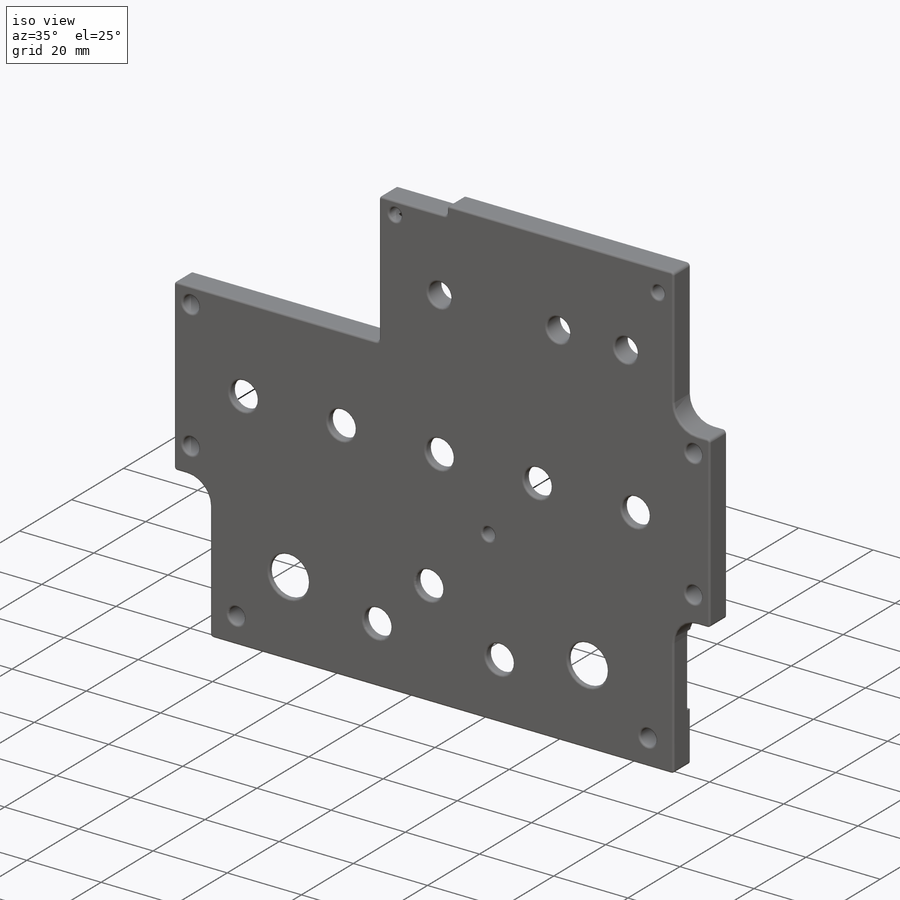
[diagram: iso view]
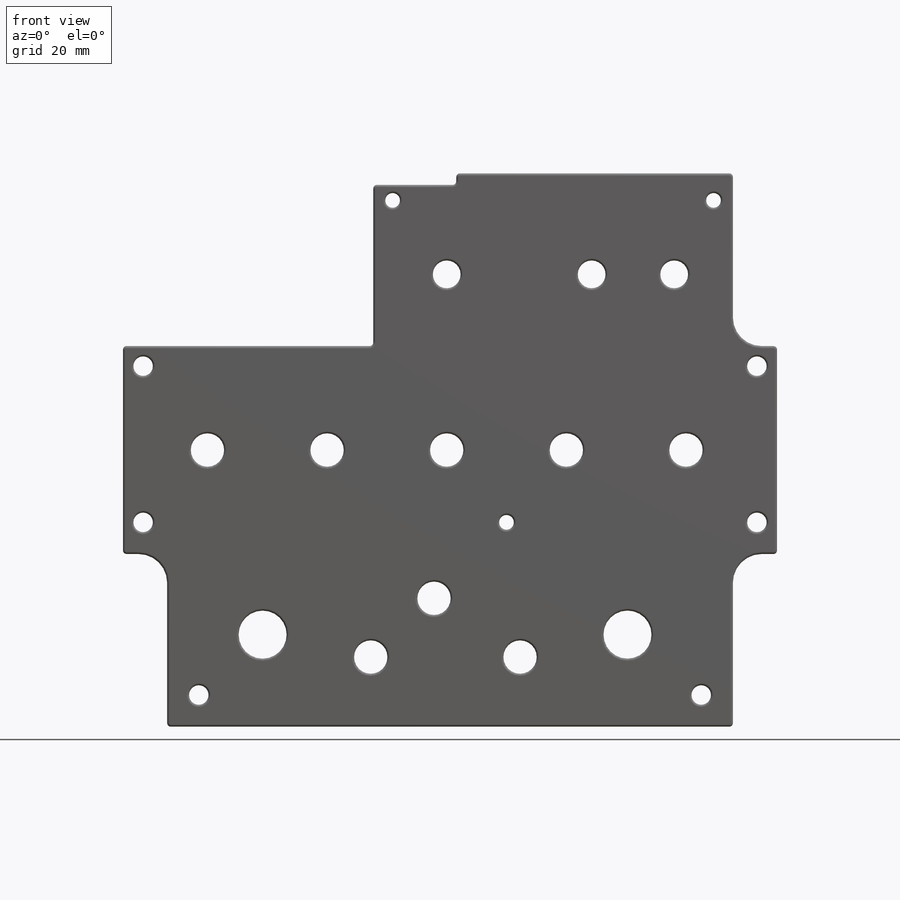
[diagram: front view]
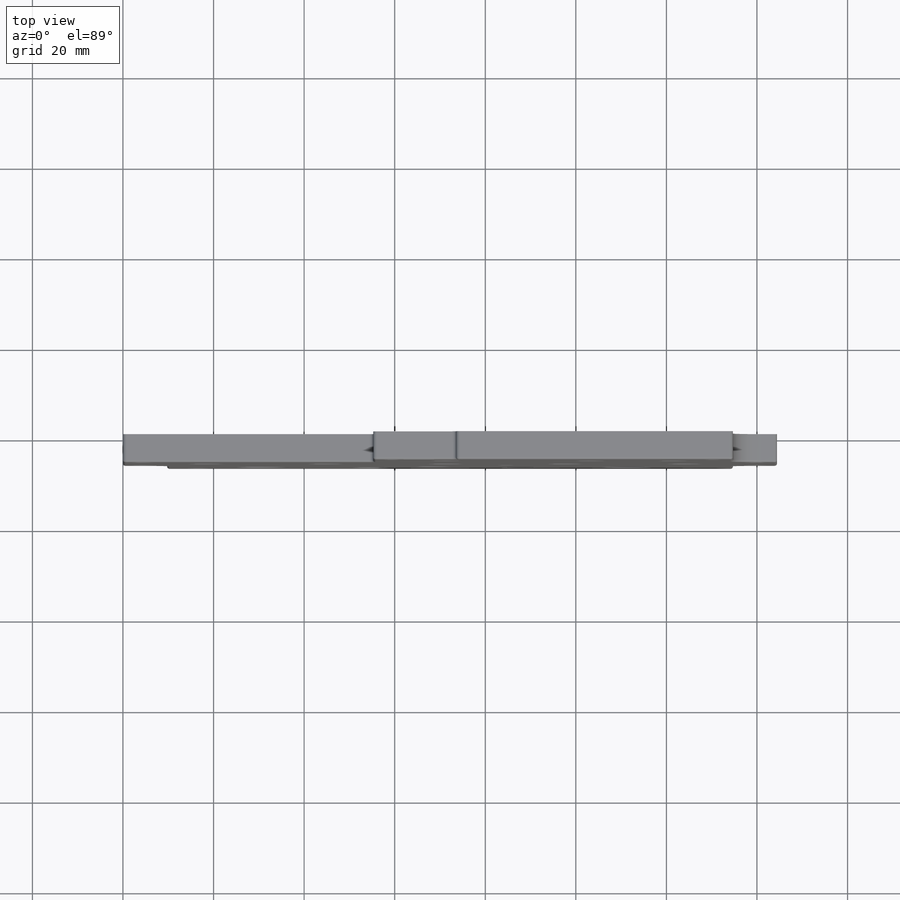
[diagram: top view]
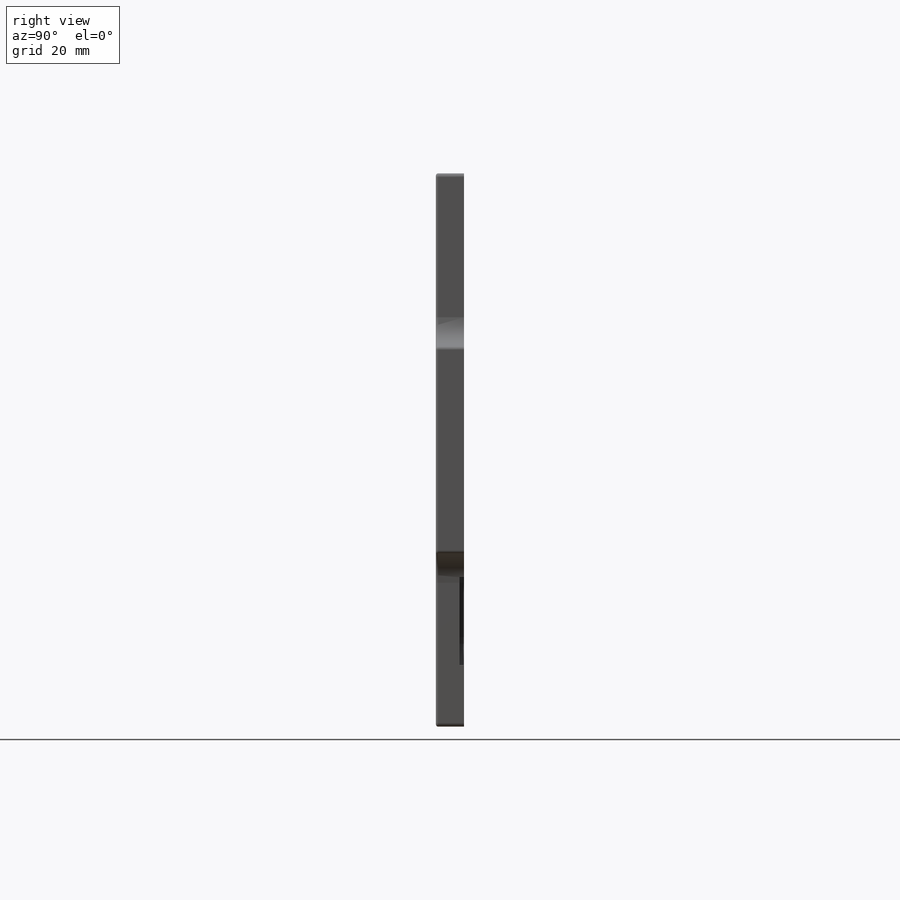
[diagram: right view]
SOLIDWORKS PART (.sldprt)
format: sldprt  version: not decoded by parser v0  size: 898,048 bytes
history: native  units: mm
features: sketch x11, cut_extrude x10, fillet x3, material x1, extrude x1 (+17 scaffold rows collapsed)
feature tree (43):
  scaffold x17  (default folders/planes/origin — collapsed)
  material  "Material <not specified>"
  sketch  "Sketch1"  dims[c1.D1=127.0mm c1.D6=70.8279mm c1.D10=84.0486mm c2.D1=144.4244mm c2.D2=122.174mm c2.D3=84.0486mm c2.D4=89.154mm c2.D5=2.54mm c2.D6=70.8279mm c2.D7=84.0486mm c2.D8=134.6708mm c2.D9=134.6708mm]
  extrude  "Main Body Base"  Depth=6.2103mm
  sketch  "Sketch3"
  cut_extrude  "Through Holes"  [1 undecoded]
  fillet  "Fillet1"  Radius=6.35mm
  sketch  "Sketch5"  dims[D5=6.8834mm D1=8.1661mm D2=13.5763mm D3=5.842mm D4=34.925mm D6=6.858mm]
  cut_extrude  "Extrude3"  Depth=3.175mm
  sketch  "Sketch4"  dims[c1.D6=6.35mm c1.D15=12.7mm c1.D16=12.7mm c2.D15=6.35mm c2.D16=6.35mm c2.D17=6.35mm c2.D18=6.35mm c2.D5=6.35mm c2.D20=6.35mm c2.D21=6.35mm c2.D23=6.35mm c2.D24=2.54mm c2.D25=6.35mm c2.D26=6.35mm c2.D28=6.35mm c2.D1=2.667mm c2.D2=2.667mm c2.D3=2.667mm c2.D4=2.667mm c3.D5=2.667mm c3.D6=11.9888mm c3.D7=2.54mm c3.D8=2.54mm c3.D9=2.54mm c3.D10=2.54mm c3.D11=4.445mm c3.D12=4.445mm c3.D13=2.54mm c3.D14=2.54mm c3.D19=3.3274mm c3.D22=2.667mm c4.D19=19.3802mm c4.D27=2.667mm c4.D8=0.0mm]
  cut_extrude  "Back Recess"  Depth=1.016mm
  sketch  "Sketch7"  dims[c1.D1=19.05mm c1.D3=19.05mm c1.D2=20.32mm c2.D3=20.32mm c2.D1=7.493mm]
  cut_extrude  "Large Knob Back Recess"  Depth=5.08mm
  sketch  "Sketch6"  dims[D1=7.493mm]
  cut_extrude  "Small Knob Back Recess"  Depth=4.191mm
  sketch  "Sketch10"  dims[D3=9.9568mm D1=13.9192mm D2=62.23mm]
  cut_extrude  "Lighting Power Connector Recess"  Depth=3.683mm
  fillet  "Fillet2"  Radius=0.79375mm
  sketch  "Sketch8"  dims[D4=4.445mm D1=6.985mm D2=29.5402mm D3=32.1183mm D5=40.386mm D6=50.038mm D7=41.91mm D8=17.018mm D9=47.1551mm D10=32.512mm D11=7.4041mm D12=15.4051mm D13=47.625mm D14=58.1025mm D15=40.132mm D16=32.5755mm D17=10.4775mm D18=34.7345mm]
  cut_extrude  "Back Light Holes"  Depth=4.064mm
  sketch  "Sketch9"  dims[D1=7.62mm]
  cut_extrude  "Extrude8"  Depth=1.1938mm
  sketch  "Sketch11"  dims[c1.D1=16.1925mm c1.D2=13.6525mm c1.D3=1.27mm c2.D2=0.9525mm]
  cut_extrude  "Lighting Power Connector Shallow Recess"  Depth=1.5748mm
  sketch  "Sketch12"  dims[c1.D4=3.81mm c1.D5=123.3297mm c1.D1=7.9375mm c1.D2=18.669mm c1.D3=18.669mm c2.D5=7.6581mm c2.D6=31.3309mm c2.D7=7.9629mm c2.D8=16.764mm c2.D9=59.6138mm c2.D10=55.626mm c2.D11=8.0645mm c2.D12=56.7055mm c2.D13=29.3243mm c2.D14=8.0645mm c2.D15=10.4775mm c2.D16=25.0571mm c2.D17=17.2085mm]
  cut_extrude  "Back Light Screw holes"  Depth=3.7084mm
  fillet  "Fillet3"  Radius=0.508mm
decode coverage: 23 of 25 modeling features carry decoded parameters
note: 1 parameter value undecoded
note: suppression state not decoded; provenance and decode notes live in map.json
